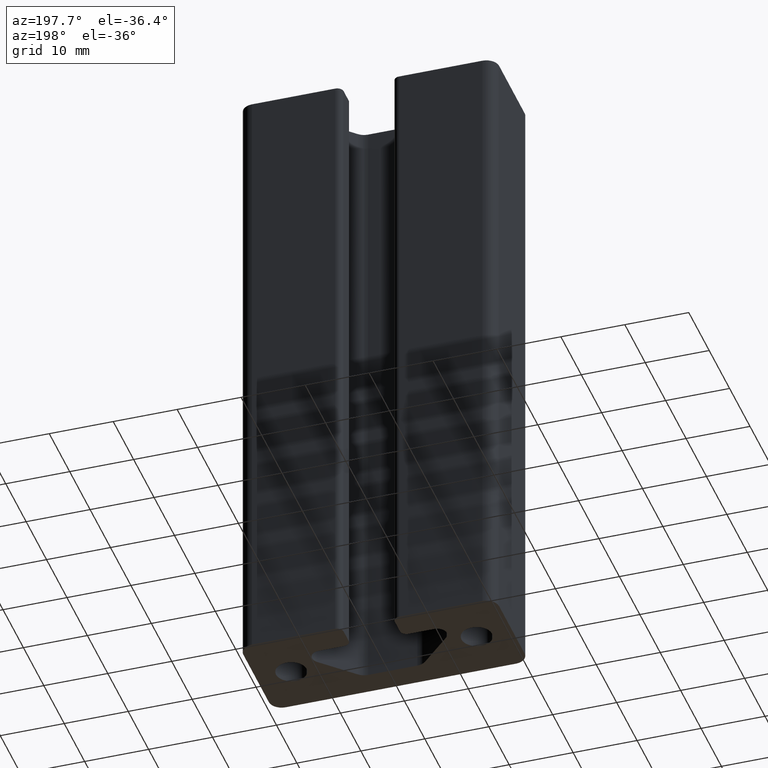
[diagram: clean part render]
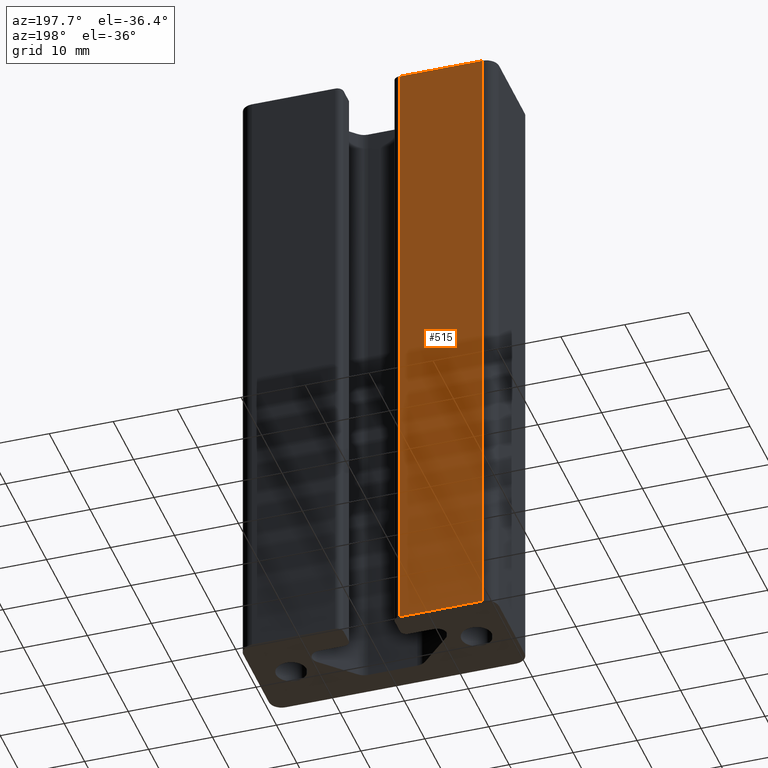
[diagram: same view with one face highlighted and labeled with its STEP entity id]
A machine part, auxiliary view. The second image highlights one B-rep face of the part: STEP entity #515.
In plain terms, the highlighted planar face has unit normal (-0, 1, 0).
Its self-contained STEP definition (entity closure, byte-faithful):
#63=FACE_OUTER_BOUND('',#91,.T.);
#91=EDGE_LOOP('',(#349,#350,#351,#352));
#125=LINE('',#767,#173);
#126=LINE('',#769,#174);
#127=LINE('',#771,#175);
#128=LINE('',#772,#176);
#173=VECTOR('',#605,12.9999999956374);
#174=VECTOR('',#606,100.);
#175=VECTOR('',#607,12.9999999956374);
#176=VECTOR('',#608,100.);
#221=VERTEX_POINT('',#765);
#222=VERTEX_POINT('',#766);
#223=VERTEX_POINT('',#768);
#224=VERTEX_POINT('',#770);
#273=EDGE_CURVE('',#221,#222,#125,.T.);
#274=EDGE_CURVE('',#223,#222,#126,.T.);
#275=EDGE_CURVE('',#224,#223,#127,.T.);
#276=EDGE_CURVE('',#224,#221,#128,.T.);
#349=ORIENTED_EDGE('',*,*,#273,.T.);
#350=ORIENTED_EDGE('',*,*,#274,.F.);
#351=ORIENTED_EDGE('',*,*,#275,.F.);
#352=ORIENTED_EDGE('',*,*,#276,.T.);
#501=PLANE('',#545);
#515=ADVANCED_FACE('',(#63),#501,.T.);
#545=AXIS2_PLACEMENT_3D('',#764,#603,#604);
#603=DIRECTION('center_axis',(-3.1161637383511E-10,1.,0.));
#604=DIRECTION('ref_axis',(0.,0.,1.));
#605=DIRECTION('',(1.,3.1161637383511E-10,0.));
#606=DIRECTION('',(0.,0.,1.));
#607=DIRECTION('',(1.,3.1161637383511E-10,0.));
#608=DIRECTION('',(0.,0.,1.));
#764=CARTESIAN_POINT('Origin',(-18.,8.24999999999994,0.));
#765=CARTESIAN_POINT('',(-18.,8.24999999999994,100.));
#766=CARTESIAN_POINT('',(-5.00000000436262,8.25000000405095,100.));
#767=CARTESIAN_POINT('',(-9.00000075128542,8.25000000280449,100.));
#768=CARTESIAN_POINT('',(-5.00000000436262,8.25000000405095,0.));
#769=CARTESIAN_POINT('',(-5.00000000436262,8.25000000405095,0.));
#770=CARTESIAN_POINT('',(-18.,8.24999999999994,0.));
#771=CARTESIAN_POINT('',(-9.00000075128542,8.25000000280449,0.));
#772=CARTESIAN_POINT('',(-18.,8.24999999999994,0.));